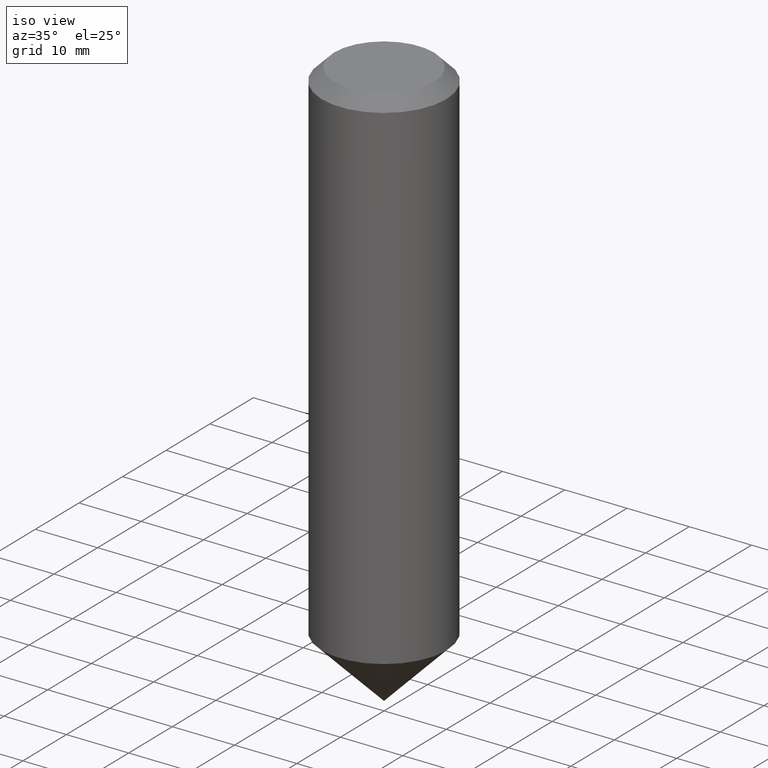
[diagram: clean part render]
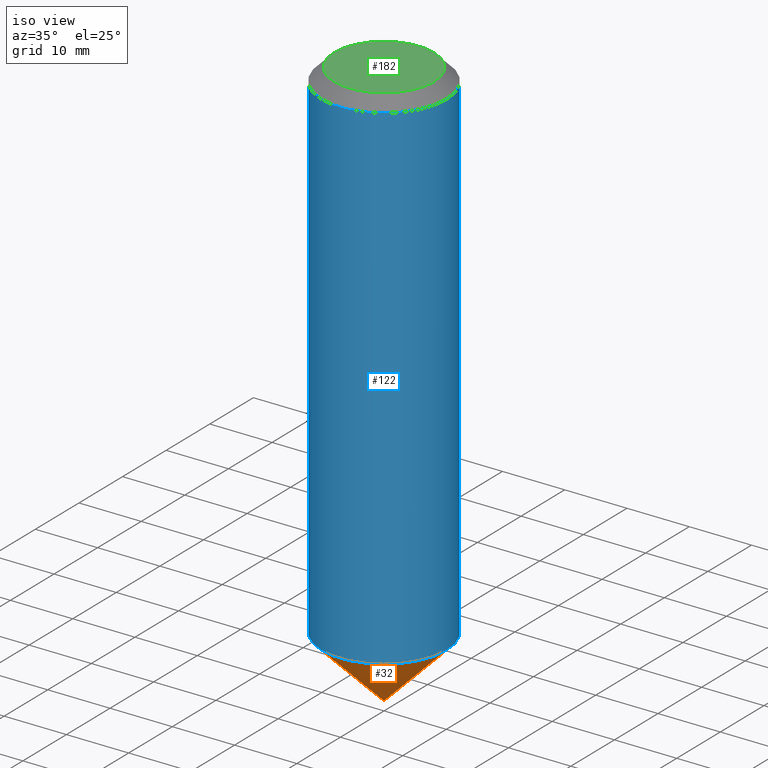
[diagram: same view with three faces highlighted in distinct colors, each labeled with its STEP entity id]
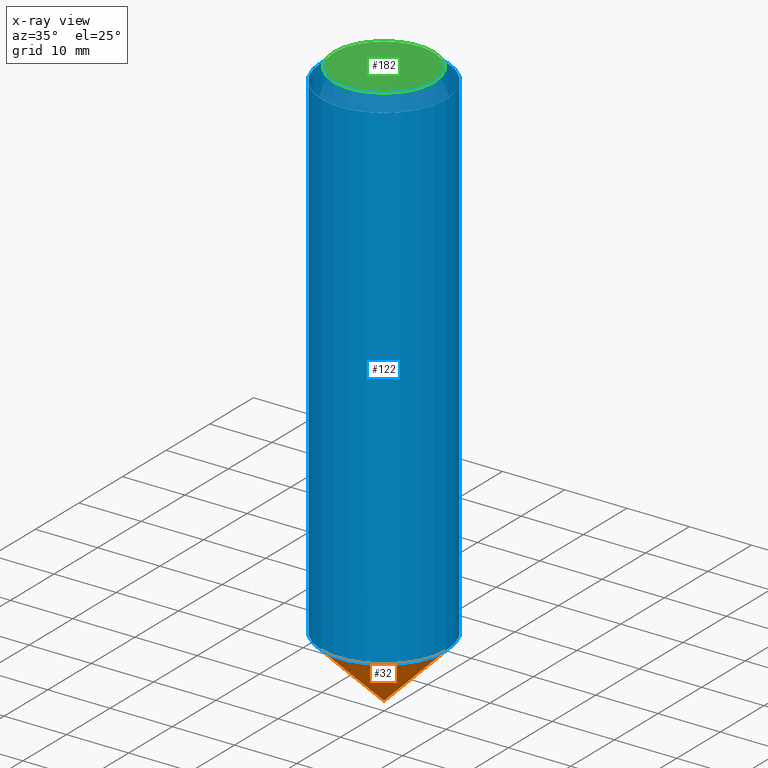
[diagram: x-ray of the same camera — body ghosted, the three highlighted faces saturated]
A machine part, iso view with three faces highlighted in distinct colors.
The next image is the same camera in x-ray (body ghosted, the three faces saturated) — at least one of them is partly hidden behind the body in this view.
Their STEP definitions:

[orange] entity #32 — the highlighted conical surface has half-angle 45 deg.
#9 = FACE_OUTER_BOUND ( 'NONE', #61, .T. ) ;
#26 = EDGE_CURVE ( 'NONE', #179, #179, #123, .T. ) ;
#29 = CONICAL_SURFACE ( 'NONE', #51, 1000.000000000003070, 0.7853981633974499443 ) ;
#32 = ADVANCED_FACE ( 'NONE', ( #9 ), #29, .T. ) ;
#47 = CARTESIAN_POINT ( 'NONE',  ( 9.999999999999422684, 0.0000000000000000000, -82.00000000000009948 ) ) ;
#48 = AXIS2_PLACEMENT_3D ( 'NONE', #73, #129, #144 ) ;
#51 = AXIS2_PLACEMENT_3D ( 'NONE', #59, #102, #161 ) ;
#59 = CARTESIAN_POINT ( 'NONE',  ( 6.340530111339130678E-12, 0.0000000000000000000, 908.0000000000000000 ) ) ;
#61 = EDGE_LOOP ( 'NONE', ( #117 ) ) ;
#73 = CARTESIAN_POINT ( 'NONE',  ( -5.726029395702741227E-13, 0.0000000000000000000, -82.00000000000002842 ) ) ;
#102 = DIRECTION ( 'NONE',  ( 6.982962677686266711E-15, 0.0000000000000000000, 1.000000000000000000 ) ) ;
#117 = ORIENTED_EDGE ( 'NONE', *, *, #26, .T. ) ;
#123 = CIRCLE ( 'NONE', #48, 9.999999999999994671 ) ;
#129 = DIRECTION ( 'NONE',  ( -6.982962677686266711E-15, -0.0000000000000000000, -1.000000000000000000 ) ) ;
#144 = DIRECTION ( 'NONE',  ( 1.000000000000000000, 0.0000000000000000000, -6.938893903907232322E-15 ) ) ;
#161 = DIRECTION ( 'NONE',  ( 1.000000000000000000, 0.0000000000000000000, -6.994405055138464905E-15 ) ) ;
#179 = VERTEX_POINT ( 'NONE', #47 ) ;

[blue] entity #122 — the highlighted cylindrical surface (bore or boss wall) has radius 10 mm, axis along (-0, 0, -1).
#5 = AXIS2_PLACEMENT_3D ( 'NONE', #21, #60, #72 ) ;
#11 = DIRECTION ( 'NONE',  ( -6.982962677686266711E-15, 0.0000000000000000000, -1.000000000000000000 ) ) ;
#12 = ORIENTED_EDGE ( 'NONE', *, *, #55, .T. ) ;
#21 = CARTESIAN_POINT ( 'NONE',  ( -1.396592535537254604E-14, 0.0000000000000000000, -2.000000000000001776 ) ) ;
#55 = EDGE_CURVE ( 'NONE', #174, #174, #121, .T. ) ;
#57 = FACE_OUTER_BOUND ( 'NONE', #159, .T. ) ;
#60 = DIRECTION ( 'NONE',  ( -6.982962677686266711E-15, 0.0000000000000000000, -1.000000000000000000 ) ) ;
#72 = DIRECTION ( 'NONE',  ( -1.000000000000000000, 0.0000000000000000000, 6.982261990806648555E-15 ) ) ;
#86 = CARTESIAN_POINT ( 'NONE',  ( -10.00000000000001421, 0.0000000000000000000, -1.999999999999932054 ) ) ;
#89 = CARTESIAN_POINT ( 'NONE',  ( -5.726029395702741227E-13, 0.0000000000000000000, -82.00000000000002842 ) ) ;
#97 = ORIENTED_EDGE ( 'NONE', *, *, #167, .F. ) ;
#103 = CARTESIAN_POINT ( 'NONE',  ( -6.424325663471364364E-13, 0.0000000000000000000, -92.00000000000000000 ) ) ;
#104 = EDGE_LOOP ( 'NONE', ( #97 ) ) ;
#111 = AXIS2_PLACEMENT_3D ( 'NONE', #103, #11, #116 ) ;
#116 = DIRECTION ( 'NONE',  ( -1.000000000000000000, 0.0000000000000000000, 6.938893903907232322E-15 ) ) ;
#118 = DIRECTION ( 'NONE',  ( 1.000000000000000000, 0.0000000000000000000, -6.938893903907232322E-15 ) ) ;
#121 = CIRCLE ( 'NONE', #5, 10.00000000000000000 ) ;
#122 = ADVANCED_FACE ( 'NONE', ( #57, #162 ), #147, .T. ) ;
#130 = DIRECTION ( 'NONE',  ( -6.982962677686266711E-15, -0.0000000000000000000, -1.000000000000000000 ) ) ;
#140 = AXIS2_PLACEMENT_3D ( 'NONE', #89, #130, #118 ) ;
#143 = CARTESIAN_POINT ( 'NONE',  ( 9.999999999999422684, 0.0000000000000000000, -82.00000000000009948 ) ) ;
#147 = CYLINDRICAL_SURFACE ( 'NONE', #111, 9.999999999999994671 ) ;
#159 = EDGE_LOOP ( 'NONE', ( #12 ) ) ;
#160 = VERTEX_POINT ( 'NONE', #143 ) ;
#162 = FACE_OUTER_BOUND ( 'NONE', #104, .T. ) ;
#167 = EDGE_CURVE ( 'NONE', #160, #160, #169, .T. ) ;
#169 = CIRCLE ( 'NONE', #140, 9.999999999999994671 ) ;
#174 = VERTEX_POINT ( 'NONE', #86 ) ;

[green] entity #182 — the highlighted planar face has unit normal (-0, 0, -1).
#18 = FACE_OUTER_BOUND ( 'NONE', #173, .T. ) ;
#49 = EDGE_CURVE ( 'NONE', #127, #127, #83, .T. ) ;
#62 = CARTESIAN_POINT ( 'NONE',  ( 0.0000000000000000000, 0.0000000000000000000, 0.0000000000000000000 ) ) ;
#70 = CARTESIAN_POINT ( 'NONE',  ( -3.111405660445696787E-30, 0.0000000000000000000, -4.455709995970691549E-16 ) ) ;
#71 = DIRECTION ( 'NONE',  ( -1.000000000000000000, 0.0000000000000000000, 6.982962677686266711E-15 ) ) ;
#75 = DIRECTION ( 'NONE',  ( -6.982962677686266711E-15, 0.0000000000000000000, -1.000000000000000000 ) ) ;
#83 = CIRCLE ( 'NONE', #95, 7.999999999999992895 ) ;
#85 = AXIS2_PLACEMENT_3D ( 'NONE', #70, #75, #113 ) ;
#95 = AXIS2_PLACEMENT_3D ( 'NONE', #62, #114, #71 ) ;
#101 = CARTESIAN_POINT ( 'NONE',  ( -7.999999999999992895, 0.0000000000000000000, 5.586370142149008320E-14 ) ) ;
#113 = DIRECTION ( 'NONE',  ( -1.000000000000000000, 0.0000000000000000000, 6.982962677686266711E-15 ) ) ;
#114 = DIRECTION ( 'NONE',  ( -6.982962677686266711E-15, 0.0000000000000000000, -1.000000000000000000 ) ) ;
#127 = VERTEX_POINT ( 'NONE', #101 ) ;
#157 = ORIENTED_EDGE ( 'NONE', *, *, #49, .F. ) ;
#173 = EDGE_LOOP ( 'NONE', ( #157 ) ) ;
#177 = PLANE ( 'NONE',  #85 ) ;
#182 = ADVANCED_FACE ( 'NONE', ( #18 ), #177, .F. ) ;